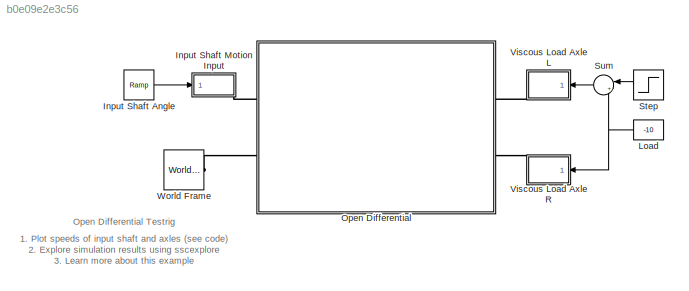
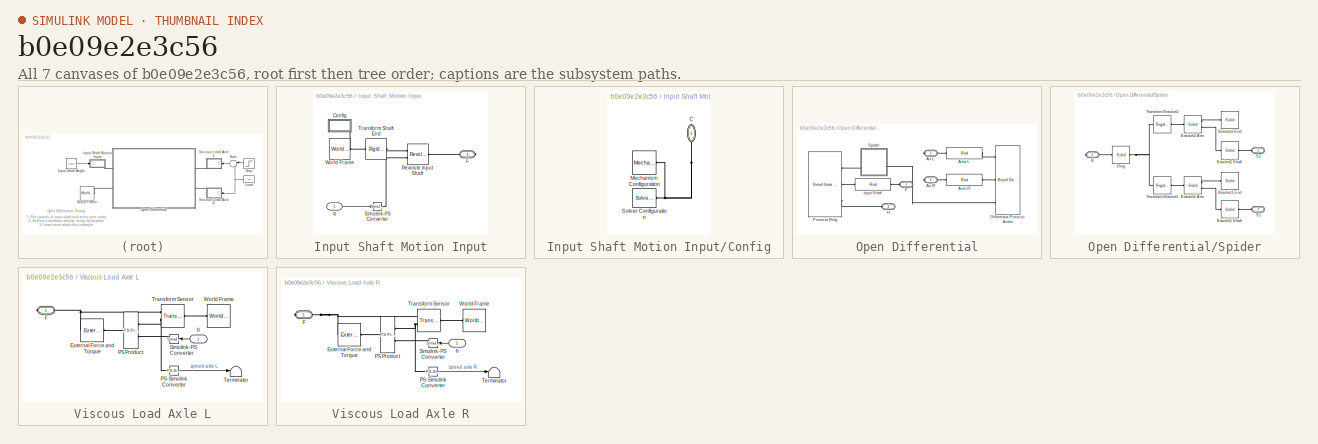
[diagram: thumbnail index - all 7 canvases of the model, root first then tree order]
MODEL slx_b0e09e2e3c56
KIND model
CONFIG AbsTol = auto
CONFIG EnableMultiTasking = on
CONFIG FixedStep = auto
CONFIG MaxStep = 1e-2
CONFIG MinStep = auto
CONFIG PreLoadFcn = sm_open_differential_testrig_param
CONFIG RelTol = 1e-3
CONFIG SampleTimeConstraint = Unconstrained
CONFIG Solver = ode15s
CONFIG SolverName = ode15s
CONFIG StartTime = 0.0
CONFIG StopTime = 10.0
BLOCK [Reference] Input Shaft Angle  REF=simulink/Sources/Ramp
  Ports = [0, 1]
  SourceBlock = simulink/Sources/Ramp
  SourceProductBaseCode = SL
  SourceProductName = Simulink
  SourceType = Ramp
BLOCK [SubSystem] Input Shaft Motion Input
  Ports = [1, 0, 0, 0, 0, 0, 1]
  RequestExecContextInheritance = off
BLOCK [SubSystem] Input Shaft Motion Input/Config
  Ports = [0, 0, 0, 0, 0, 0, 1]
  RequestExecContextInheritance = off
BLOCK [PMIOPort] Input Shaft Motion Input/Config/C
  Side = Right
BLOCK [Reference] Input Shaft Motion Input/Config/Mechanism Configuration  REF=sm_lib/Utilities/Mechanism
Configuration
  Ports = [0, 0, 0, 0, 0, 0, 1]
  SourceBlock = sm_lib/Utilities/Mechanism\nConfiguration
  SourceProductBaseCode = MS
  SourceProductName = Simscape Multibody
  SourceType = Mechanism\nConfiguration
BLOCK [Reference] Input Shaft Motion Input/Config/Solver Configuration  REF=nesl_utility/Solver
Configuration
  Ports = [0, 0, 0, 0, 0, 0, 1]
  SourceBlock = nesl_utility/Solver\nConfiguration
  SourceProductBaseCode = SS
  SourceProductName = Simscape
  SourceType = Solver\nConfiguration
BLOCK [PMIOPort] Input Shaft Motion Input/F
  Side = Right
BLOCK [Reference] Input Shaft Motion Input/Revolute Input Shaft  REF=sm_lib/Joints/Revolute Joint
  Ports = [0, 0, 0, 0, 0, 2, 1]
  SourceBlock = sm_lib/Joints/Revolute Joint
  SourceProductBaseCode = MS
  SourceProductName = Simscape Multibody
  SourceType = Revolute Joint
BLOCK [Reference] Input Shaft Motion Input/Simulink-PS Converter  REF=nesl_utility/Simulink-PS
Converter
  Ports = [1, 0, 0, 0, 0, 0, 1]
  SourceBlock = nesl_utility/Simulink-PS\nConverter
  SourceProductBaseCode = SS
  SourceProductName = Simscape
  SourceType = Simulink-PS\nConverter
BLOCK [Reference] Input Shaft Motion Input/Transform Shaft End  REF=sm_lib/Frames and
Transforms/Rigid
Transform
  Ports = [0, 0, 0, 0, 0, 1, 1]
  SourceBlock = sm_lib/Frames and\nTransforms/Rigid\nTransform
  SourceProductBaseCode = MS
  SourceProductName = Simscape Multibody
  SourceType = Rigid\nTransform
BLOCK [Reference] Input Shaft Motion Input/World Frame  REF=sm_lib/Frames and
Transforms/World Frame
  Ports = [0, 0, 0, 0, 0, 0, 1]
  SourceBlock = sm_lib/Frames and\nTransforms/World Frame
  SourceProductBaseCode = MS
  SourceProductName = Simscape Multibody
  SourceType = World Frame
BLOCK [Inport] Input Shaft Motion Input/q
  IconDisplay = Port number
BLOCK [Constant] Load
  Value = -10
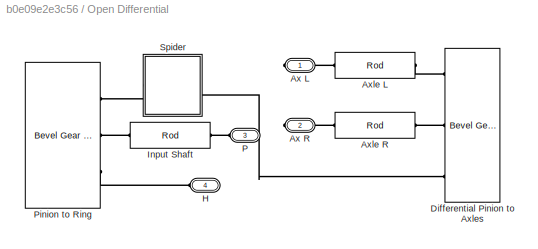
BLOCK [SubSystem] Open Differential
  Ports = [0, 0, 0, 0, 0, 2, 2]
  RequestExecContextInheritance = off
  Tag = PublishSubsystem
BLOCK [PMIOPort] Open Differential/Ax L
  Side = Right
BLOCK [PMIOPort] Open Differential/Ax R
  Port = 2
  Side = Right
BLOCK [Reference] Open Differential/Axle L  REF=Multibody_Parts_Lib/Basic/Rod
  Ports = [0, 0, 0, 0, 0, 1, 1]
  SourceBlock = Multibody_Parts_Lib/Basic/Rod
  SourceProductName = Simscape Multibody Parts Library
  SourceType = Rod
BLOCK [Reference] Open Differential/Axle R  REF=Multibody_Parts_Lib/Basic/Rod
  Ports = [0, 0, 0, 0, 0, 1, 1]
  SourceBlock = Multibody_Parts_Lib/Basic/Rod
  SourceProductName = Simscape Multibody Parts Library
  SourceType = Rod
BLOCK [Reference] Open Differential/Differential Pinion to Axles  REF=Multibody_Parts_Lib/Gears/Assemblies/Bevel Gear 4x
Closed Assembly
  Ports = [0, 0, 0, 0, 0, 5]
  SourceBlock = Multibody_Parts_Lib/Gears/Assemblies/Bevel Gear 4x\nClosed Assembly
  SourceProductName = Simscape Multibody Parts Library
  SourceType = Bevel Gear Assembly
  Tag = PublishSubsystem
BLOCK [PMIOPort] Open Differential/H
  Port = 4
  Side = Left
BLOCK [Reference] Open Differential/Input Shaft  REF=Multibody_Parts_Lib/Basic/Rod
  Ports = [0, 0, 0, 0, 0, 1, 1]
  SourceBlock = Multibody_Parts_Lib/Basic/Rod
  SourceProductName = Simscape Multibody Parts Library
  SourceType = Rod
BLOCK [PMIOPort] Open Differential/P
  Port = 3
  Side = Left
BLOCK [Reference] Open Differential/Pinion to Ring  REF=Multibody_Parts_Lib/Gears/Assemblies/Bevel Gear Assembly
  Ports = [0, 0, 0, 0, 0, 3]
  SourceBlock = Multibody_Parts_Lib/Gears/Assemblies/Bevel Gear Assembly
  SourceProductName = Simscape Multibody Parts Library
  SourceType = Bevel Gear Assembly
  Tag = PublishSubsystem
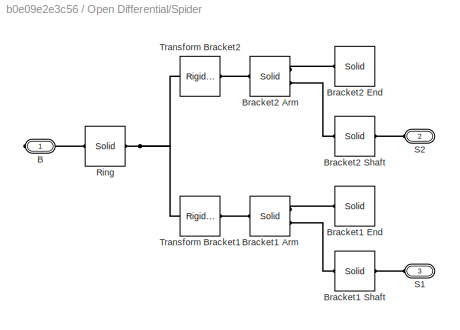
BLOCK [SubSystem] Open Differential/Spider
  Ports = [0, 0, 0, 0, 0, 2, 1]
  RequestExecContextInheritance = off
BLOCK [PMIOPort] Open Differential/Spider/B
  Side = Right
BLOCK [Reference] Open Differential/Spider/Bracket1 Arm  REF=sm_lib/Body Elements/Solid
  Ports = [0, 0, 0, 0, 0, 2, 1]
  SourceBlock = sm_lib/Body Elements/Solid
  SourceProductBaseCode = MS
  SourceProductName = Simscape Multibody
  SourceType = Solid
BLOCK [Reference] Open Differential/Spider/Bracket1 End  REF=sm_lib/Body Elements/Solid
  Ports = [0, 0, 0, 0, 0, 1, 1]
  SourceBlock = sm_lib/Body Elements/Solid
  SourceProductBaseCode = MS
  SourceProductName = Simscape Multibody
  SourceType = Solid
BLOCK [Reference] Open Differential/Spider/Bracket1 Shaft  REF=sm_lib/Body Elements/Solid
  Ports = [0, 0, 0, 0, 0, 1, 1]
  SourceBlock = sm_lib/Body Elements/Solid
  SourceProductBaseCode = MS
  SourceProductName = Simscape Multibody
  SourceType = Solid
BLOCK [Reference] Open Differential/Spider/Bracket2 Arm  REF=sm_lib/Body Elements/Solid
  Ports = [0, 0, 0, 0, 0, 2, 1]
  SourceBlock = sm_lib/Body Elements/Solid
  SourceProductBaseCode = MS
  SourceProductName = Simscape Multibody
  SourceType = Solid
BLOCK [Reference] Open Differential/Spider/Bracket2 End  REF=sm_lib/Body Elements/Solid
  Ports = [0, 0, 0, 0, 0, 1, 1]
  SourceBlock = sm_lib/Body Elements/Solid
  SourceProductBaseCode = MS
  SourceProductName = Simscape Multibody
  SourceType = Solid
BLOCK [Reference] Open Differential/Spider/Bracket2 Shaft  REF=sm_lib/Body Elements/Solid
  Ports = [0, 0, 0, 0, 0, 1, 1]
  SourceBlock = sm_lib/Body Elements/Solid
  SourceProductBaseCode = MS
  SourceProductName = Simscape Multibody
  SourceType = Solid
BLOCK [Reference] Open Differential/Spider/Ring  REF=sm_lib/Body Elements/Solid
  Ports = [0, 0, 0, 0, 0, 1, 1]
  SourceBlock = sm_lib/Body Elements/Solid
  SourceProductBaseCode = MS
  SourceProductName = Simscape Multibody
  SourceType = Solid
BLOCK [PMIOPort] Open Differential/Spider/S1
  Port = 3
  Side = Left
BLOCK [PMIOPort] Open Differential/Spider/S2
  Port = 2
  Side = Left
BLOCK [Reference] Open Differential/Spider/Transform Bracket1  REF=sm_lib/Frames and
Transforms/Rigid
Transform
  Ports = [0, 0, 0, 0, 0, 1, 1]
  SourceBlock = sm_lib/Frames and\nTransforms/Rigid\nTransform
  SourceProductBaseCode = MS
  SourceProductName = Simscape Multibody
  SourceType = Rigid\nTransform
BLOCK [Reference] Open Differential/Spider/Transform Bracket2  REF=sm_lib/Frames and
Transforms/Rigid
Transform
  Ports = [0, 0, 0, 0, 0, 1, 1]
  SourceBlock = sm_lib/Frames and\nTransforms/Rigid\nTransform
  SourceProductBaseCode = MS
  SourceProductName = Simscape Multibody
  SourceType = Rigid\nTransform
BLOCK [Step] Step
  After = -50
  AttributesFormatString = %<After> at %<Time> sec
  SampleTime = 0
  Time = 5
BLOCK [Sum] Sum
  IconShape = round
  InputSameDT = off
  Inputs = |++
  OutDataTypeStr = Inherit: Inherit via internal rule
  Ports = [2, 1]
  SaturateOnIntegerOverflow = off
BLOCK [SubSystem] Viscous Load Axle L
  Ports = [1, 0, 0, 0, 0, 0, 1]
  RequestExecContextInheritance = off
BLOCK [Reference] Viscous Load Axle L/External Force and Torque  REF=sm_lib/Forces and
Torques/External Force
and Torque
  Ports = [0, 0, 0, 0, 0, 1, 1]
  SourceBlock = sm_lib/Forces and\nTorques/External Force\nand Torque
  SourceProductBaseCode = MS
  SourceProductName = Simscape Multibody
  SourceType = External Force\nand Torque
BLOCK [PMIOPort] Viscous Load Axle L/F
  Side = Right
BLOCK [Reference] Viscous Load Axle L/PS Product  REF=fl_lib/Physical Signals/Functions/PS Product
  Ports = [0, 0, 0, 0, 0, 2, 1]
  SourceBlock = fl_lib/Physical Signals/Functions/PS Product
  SourceProductBaseCode = SS
  SourceProductName = Simscape
  SourceType = PS Product
BLOCK [Reference] Viscous Load Axle L/PS-Simulink Converter  REF=nesl_utility/PS-Simulink
Converter
  Ports = [0, 1, 0, 0, 0, 1]
  SourceBlock = nesl_utility/PS-Simulink\nConverter
  SourceProductBaseCode = SS
  SourceProductName = Simscape
  SourceType = PS-Simulink\nConverter
BLOCK [Reference] Viscous Load Axle L/Simulink-PS Converter  REF=nesl_utility/Simulink-PS
Converter
  Ports = [1, 0, 0, 0, 0, 0, 1]
  SourceBlock = nesl_utility/Simulink-PS\nConverter
  SourceProductBaseCode = SS
  SourceProductName = Simscape
  SourceType = Simulink-PS\nConverter
BLOCK [Terminator] Viscous Load Axle L/Terminator
BLOCK [Reference] Viscous Load Axle L/Transform Sensor  REF=sm_lib/Frames and
Transforms/Transform
Sensor
  Ports = [0, 0, 0, 0, 0, 1, 2]
  SourceBlock = sm_lib/Frames and\nTransforms/Transform\nSensor
  SourceProductBaseCode = MS
  SourceProductName = Simscape Multibody
  SourceType = Transform\nSensor
BLOCK [Reference] Viscous Load Axle L/World Frame  REF=sm_lib/Frames and
Transforms/World Frame
  Ports = [0, 0, 0, 0, 0, 0, 1]
  SourceBlock = sm_lib/Frames and\nTransforms/World Frame
  SourceProductBaseCode = MS
  SourceProductName = Simscape Multibody
  SourceType = World Frame
BLOCK [Inport] Viscous Load Axle L/b
  IconDisplay = Port number
BLOCK [SubSystem] Viscous Load Axle R
  Ports = [1, 0, 0, 0, 0, 0, 1]
  RequestExecContextInheritance = off
BLOCK [Reference] Viscous Load Axle R/External Force and Torque  REF=sm_lib/Forces and
Torques/External Force
and Torque
  Ports = [0, 0, 0, 0, 0, 1, 1]
  SourceBlock = sm_lib/Forces and\nTorques/External Force\nand Torque
  SourceProductBaseCode = MS
  SourceProductName = Simscape Multibody
  SourceType = External Force\nand Torque
BLOCK [PMIOPort] Viscous Load Axle R/F
  Side = Right
BLOCK [Reference] Viscous Load Axle R/PS Product  REF=fl_lib/Physical Signals/Functions/PS Product
  Ports = [0, 0, 0, 0, 0, 2, 1]
  SourceBlock = fl_lib/Physical Signals/Functions/PS Product
  SourceProductBaseCode = SS
  SourceProductName = Simscape
  SourceType = PS Product
BLOCK [Reference] Viscous Load Axle R/PS-Simulink Converter  REF=nesl_utility/PS-Simulink
Converter
  Ports = [0, 1, 0, 0, 0, 1]
  SourceBlock = nesl_utility/PS-Simulink\nConverter
  SourceProductBaseCode = SS
  SourceProductName = Simscape
  SourceType = PS-Simulink\nConverter
BLOCK [Reference] Viscous Load Axle R/Simulink-PS Converter  REF=nesl_utility/Simulink-PS
Converter
  Ports = [1, 0, 0, 0, 0, 0, 1]
  SourceBlock = nesl_utility/Simulink-PS\nConverter
  SourceProductBaseCode = SS
  SourceProductName = Simscape
  SourceType = Simulink-PS\nConverter
BLOCK [Terminator] Viscous Load Axle R/Terminator
BLOCK [Reference] Viscous Load Axle R/Transform Sensor  REF=sm_lib/Frames and
Transforms/Transform
Sensor
  Ports = [0, 0, 0, 0, 0, 1, 2]
  SourceBlock = sm_lib/Frames and\nTransforms/Transform\nSensor
  SourceProductBaseCode = MS
  SourceProductName = Simscape Multibody
  SourceType = Transform\nSensor
BLOCK [Reference] Viscous Load Axle R/World Frame  REF=sm_lib/Frames and
Transforms/World Frame
  Ports = [0, 0, 0, 0, 0, 0, 1]
  SourceBlock = sm_lib/Frames and\nTransforms/World Frame
  SourceProductBaseCode = MS
  SourceProductName = Simscape Multibody
  SourceType = World Frame
BLOCK [Inport] Viscous Load Axle R/b
  IconDisplay = Port number
BLOCK [Reference] World Frame  REF=sm_lib/Frames and
Transforms/World Frame
  Ports = [0, 0, 0, 0, 0, 0, 1]
  SourceBlock = sm_lib/Frames and\nTransforms/World Frame
  SourceProductBaseCode = MS
  SourceProductName = Simscape Multibody
  SourceType = World Frame
ANNOTATION (root): 1. Plot speeds of input shaft and axles ( see code ) 2. Explore simulation results using sscexplore 3. Learn more about this example
ANNOTATION (root): Open Differential Testrig
LINE Input Shaft Angle:1 -> Input Shaft Motion Input:1
LINE Input Shaft Motion Input/q:1 -> Input Shaft Motion Input/Simulink-PS Converter:1
NET Load:1 -> Sum:2, Viscous Load Axle R:1
LINE Step:1 -> Sum:1
LINE Sum:1 -> Viscous Load Axle L:1
LINE Viscous Load Axle L/PS-Simulink Converter:1 -> Viscous Load Axle L/Terminator:1
LINE Viscous Load Axle L/b:1 -> Viscous Load Axle L/Simulink-PS Converter:1
LINE Viscous Load Axle R/PS-Simulink Converter:1 -> Viscous Load Axle R/Terminator:1
LINE Viscous Load Axle R/b:1 -> Viscous Load Axle R/Simulink-PS Converter:1
PNET net1: Input Shaft Motion Input/Config/C:RConn1 -- Input Shaft Motion Input/Config/Mechanism Configuration:RConn1 -- Input Shaft Motion Input/Config/Solver Configuration:RConn1
PNET net2: Input Shaft Motion Input/Config:RConn1 -- Input Shaft Motion Input/Transform Shaft End:LConn1 -- Input Shaft Motion Input/World Frame:RConn1
PLINE Input Shaft Motion Input/F:RConn1 -- Input Shaft Motion Input/Revolute Input Shaft:RConn1
PLINE Input Shaft Motion Input/Revolute Input Shaft:LConn1 -- Input Shaft Motion Input/Transform Shaft End:RConn1
PLINE Input Shaft Motion Input/Revolute Input Shaft:LConn2 -- Input Shaft Motion Input/Simulink-PS Converter:RConn1
PLINE Input Shaft Motion Input:RConn1 -- Open Differential:LConn1
PLINE Open Differential/Ax L:RConn1 -- Open Differential/Axle L:LConn1
PLINE Open Differential/Ax R:RConn1 -- Open Differential/Axle R:LConn1
PLINE Open Differential/Axle L:RConn1 -- Open Differential/Differential Pinion to Axles:LConn1
PLINE Open Differential/Axle R:RConn1 -- Open Differential/Differential Pinion to Axles:LConn3
PLINE Open Differential/Differential Pinion to Axles:LConn5 -- Open Differential/Spider:LConn2
PLINE Open Differential/H:RConn1 -- Open Differential/Pinion to Ring:LConn3
PLINE Open Differential/Input Shaft:LConn1 -- Open Differential/P:RConn1
PLINE Open Differential/Input Shaft:RConn1 -- Open Differential/Pinion to Ring:LConn2
PLINE Open Differential/Pinion to Ring:LConn1 -- Open Differential/Spider:RConn1
PLINE Open Differential/Spider/B:RConn1 -- Open Differential/Spider/Ring:RConn1
PLINE Open Differential/Spider/Bracket1 Arm:LConn1 -- Open Differential/Spider/Bracket1 End:LConn1
PLINE Open Differential/Spider/Bracket1 Arm:LConn2 -- Open Differential/Spider/Bracket1 Shaft:RConn1
PLINE Open Differential/Spider/Bracket1 Arm:RConn1 -- Open Differential/Spider/Transform Bracket1:RConn1
PLINE Open Differential/Spider/Bracket1 Shaft:LConn1 -- Open Differential/Spider/S1:RConn1
PLINE Open Differential/Spider/Bracket2 Arm:LConn1 -- Open Differential/Spider/Bracket2 End:LConn1
PLINE Open Differential/Spider/Bracket2 Arm:LConn2 -- Open Differential/Spider/Bracket2 Shaft:RConn1
PLINE Open Differential/Spider/Bracket2 Arm:RConn1 -- Open Differential/Spider/Transform Bracket2:RConn1
PLINE Open Differential/Spider/Bracket2 Shaft:LConn1 -- Open Differential/Spider/S2:RConn1
PNET net3: Open Differential/Spider/Ring:LConn1 -- Open Differential/Spider/Transform Bracket1:LConn1 -- Open Differential/Spider/Transform Bracket2:LConn1
PLINE Open Differential:LConn2 -- World Frame:RConn1
PLINE Open Differential:RConn1 -- Viscous Load Axle L:RConn1
PLINE Open Differential:RConn2 -- Viscous Load Axle R:RConn1
PLINE Viscous Load Axle L/External Force and Torque:LConn1 -- Viscous Load Axle L/PS Product:RConn1
PNET net4: Viscous Load Axle L/External Force and Torque:RConn1 -- Viscous Load Axle L/F:RConn1 -- Viscous Load Axle L/Transform Sensor:RConn1
PNET net5: Viscous Load Axle L/PS Product:LConn1 -- Viscous Load Axle L/PS-Simulink Converter:LConn1 -- Viscous Load Axle L/Transform Sensor:RConn2
PLINE Viscous Load Axle L/PS Product:LConn2 -- Viscous Load Axle L/Simulink-PS Converter:RConn1
PLINE Viscous Load Axle L/Transform Sensor:LConn1 -- Viscous Load Axle L/World Frame:RConn1
PLINE Viscous Load Axle R/External Force and Torque:LConn1 -- Viscous Load Axle R/PS Product:RConn1
PNET net6: Viscous Load Axle R/External Force and Torque:RConn1 -- Viscous Load Axle R/F:RConn1 -- Viscous Load Axle R/Transform Sensor:RConn1
PNET net7: Viscous Load Axle R/PS Product:LConn1 -- Viscous Load Axle R/PS-Simulink Converter:LConn1 -- Viscous Load Axle R/Transform Sensor:RConn2
PLINE Viscous Load Axle R/PS Product:LConn2 -- Viscous Load Axle R/Simulink-PS Converter:RConn1
PLINE Viscous Load Axle R/Transform Sensor:LConn1 -- Viscous Load Axle R/World Frame:RConn1
note: NET lines group one-source signal fan-out (src -> all destinations, sorted); 1:1 wires keep LINE; PNET lines group multi-terminal physical nets as a canonical sorted terminal list (undirected conserving connections); 2-terminal nets keep the pairwise PLINE form
